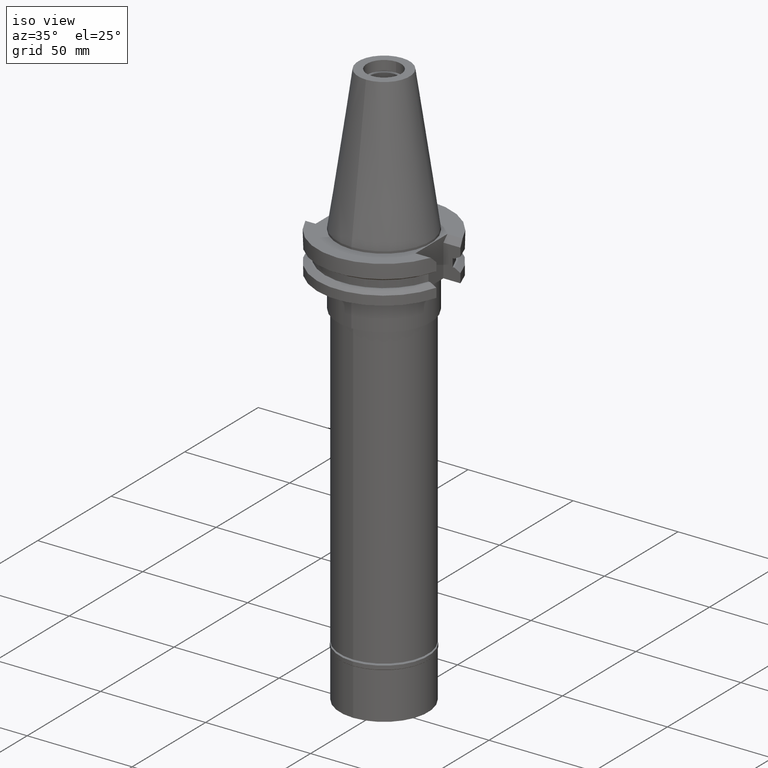
[diagram: clean part render]
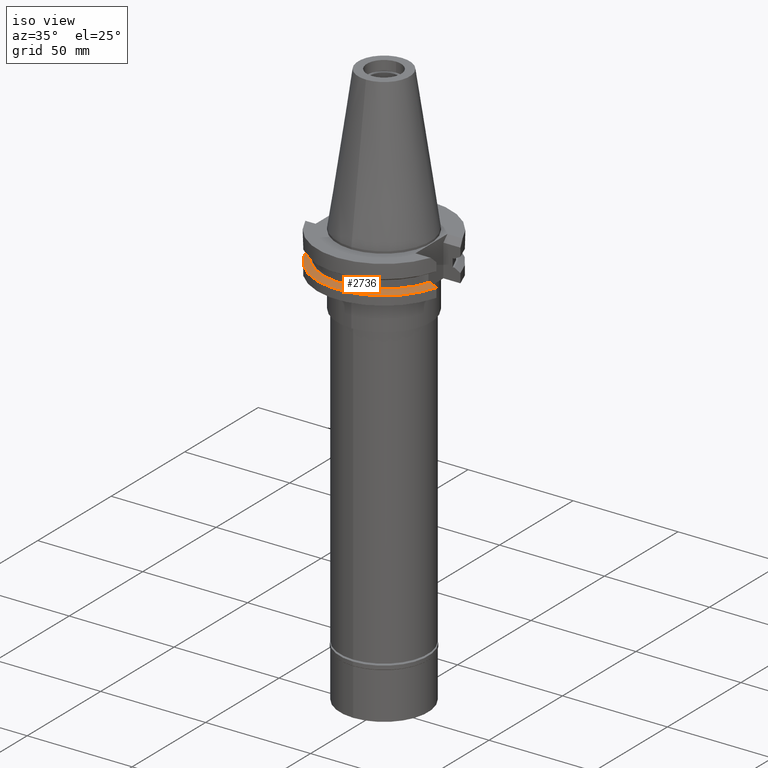
[diagram: same view with one face highlighted and labeled with its STEP entity id]
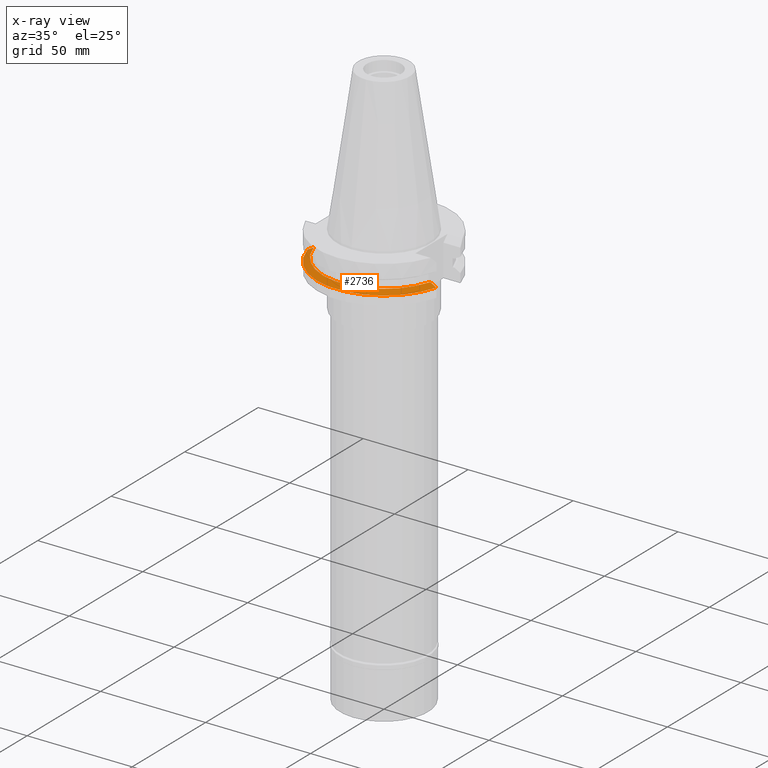
[diagram: x-ray of the same camera — body ghosted, the highlighted face saturated]
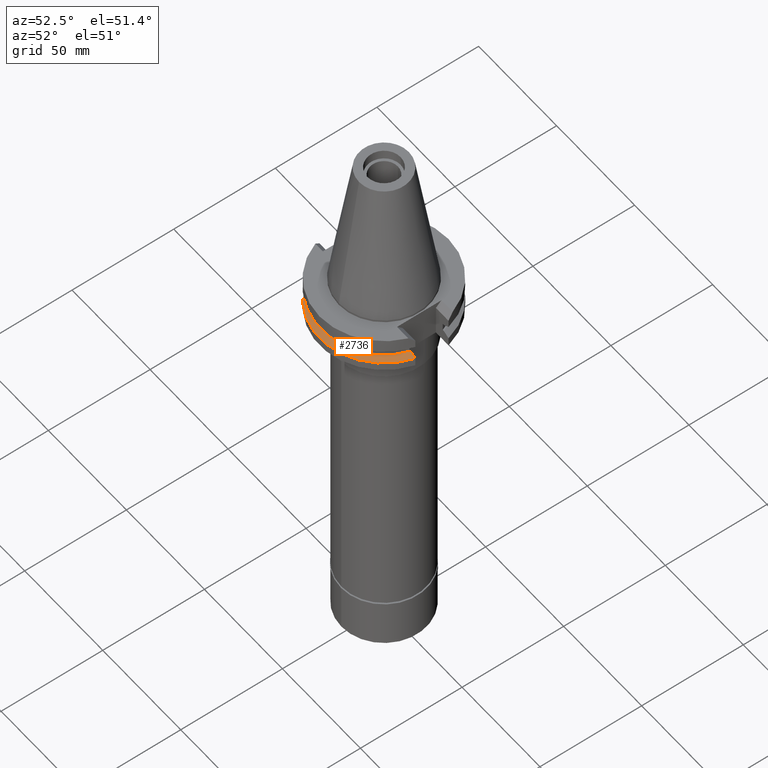
[diagram: same view with one face highlighted and labeled with its STEP entity id]
A machine part, iso view. The second image highlights one B-rep face of the part: STEP entity #2736.
The next image is the same camera in x-ray: the body ghosted, the highlighted face saturated — about 0% of this face is hidden behind the body in this view.
A second angle (auxiliary view) of the same face is appended — the face is thin or edge-on in the first view.
In plain terms, the highlighted conical surface has half-angle 60 deg.
Its self-contained STEP definition (entity closure, byte-faithful):
#20 = ORIENTED_EDGE ( 'NONE', *, *, #566, .T. ) ;
#41 = CARTESIAN_POINT ( 'NONE',  ( 30.34763340180000313, -8.190000606413001094, -14.47078367743999827 ) ) ;
#74 = CARTESIAN_POINT ( 'NONE',  ( 27.78616453828999866, -8.190000190935000646, -13.04749999999999943 ) ) ;
#147 = CONICAL_SURFACE ( 'NONE', #617, 30.35901877526999826, 1.047197551196400456 ) ;
#200 = DIRECTION ( 'NONE',  ( 0.0000000000000000000, 0.0000000000000000000, -1.000000000000000000 ) ) ;
#278 = AXIS2_PLACEMENT_3D ( 'NONE', #394, #200, #2220 ) ;
#305 = CARTESIAN_POINT ( 'NONE',  ( -29.69647123865000182, -8.189999973374000319, -14.10794229549000001 ) ) ;
#314 = DIRECTION ( 'NONE',  ( 0.9661575315241073270, -0.2579527559055020958, 0.0000000000000000000 ) ) ;
#394 = CARTESIAN_POINT ( 'NONE',  ( 0.0000000000000000000, 1.055026073064999954E-14, -13.04749999999999943 ) ) ;
#525 = VERTEX_POINT ( 'NONE', #1151 ) ;
#552 = CARTESIAN_POINT ( 'NONE',  ( -30.67550165945999652, -8.189999874273000913, -14.65366564556999940 ) ) ;
#566 = EDGE_CURVE ( 'NONE', #2999, #2998, #3151, .T. ) ;
#568 = CARTESIAN_POINT ( 'NONE',  ( -28.73337410535000203, -8.190000281779999725, -13.57253271351000024 ) ) ;
#617 = AXIS2_PLACEMENT_3D ( 'NONE', #700, #2209, #1992 ) ;
#700 = CARTESIAN_POINT ( 'NONE',  ( 0.0000000000000000000, 1.055026073064999954E-14, -13.85058338454000015 ) ) ;
#793 = EDGE_CURVE ( 'NONE', #1530, #2998, #1358, .T. ) ;
#1018 = CARTESIAN_POINT ( 'NONE',  ( -27.78617704655999887, -8.189999360264000217, -13.04749999999999943 ) ) ;
#1151 = CARTESIAN_POINT ( 'NONE',  ( 30.67550146398999900, -8.190000606413001094, -14.65367218811000072 ) ) ;
#1210 = AXIS2_PLACEMENT_3D ( 'NONE', #2570, #1324, #314 ) ;
#1263 = CIRCLE ( 'NONE', #1210, 31.74999999999998579 ) ;
#1316 = CARTESIAN_POINT ( 'NONE',  ( -28.10039086275999765, -8.189999360264000217, -13.22151001005000026 ) ) ;
#1324 = DIRECTION ( 'NONE',  ( 0.0000000000000000000, 0.0000000000000000000, -1.000000000000000000 ) ) ;
#1358 = B_SPLINE_CURVE_WITH_KNOTS ( 'NONE', 3,
 ( #552, #2858, #305, #568, #1316, #1018 ),
 .UNSPECIFIED., .F., .F.,
 ( 4, 1, 1, 4 ),
 ( 0.0000000000000000000, 0.3333333333333000081, 0.6666666666667000474, 1.000000000000000000 ),
 .UNSPECIFIED. ) ;
#1521 = ORIENTED_EDGE ( 'NONE', *, *, #793, .F. ) ;
#1530 = VERTEX_POINT ( 'NONE', #1734 ) ;
#1734 = CARTESIAN_POINT ( 'NONE',  ( -30.67550165945999652, -8.189999874273000913, -14.65366564556999940 ) ) ;
#1779 = CARTESIAN_POINT ( 'NONE',  ( 28.10039085313999863, -8.190000190935000646, -13.22151692714000148 ) ) ;
#1794 = CARTESIAN_POINT ( 'NONE',  ( 29.69646998833000140, -8.189999742464999954, -14.10793893844999936 ) ) ;
#1992 = DIRECTION ( 'NONE',  ( 0.0000000000000000000, -1.000000000000000000, 0.0000000000000000000 ) ) ;
#2061 = EDGE_LOOP ( 'NONE', ( #2584, #20, #1521, #2088 ) ) ;
#2070 = CARTESIAN_POINT ( 'NONE',  ( 30.67550146398999900, -8.190000606413001094, -14.65367218811000072 ) ) ;
#2088 = ORIENTED_EDGE ( 'NONE', *, *, #2170, .F. ) ;
#2170 = EDGE_CURVE ( 'NONE', #525, #1530, #1263, .T. ) ;
#2206 = EDGE_CURVE ( 'NONE', #2999, #525, #2660, .T. ) ;
#2209 = DIRECTION ( 'NONE',  ( 0.0000000000000000000, 0.0000000000000000000, -1.000000000000000000 ) ) ;
#2220 = DIRECTION ( 'NONE',  ( 0.0000000000000000000, -1.000000000000000000, 0.0000000000000000000 ) ) ;
#2567 = CARTESIAN_POINT ( 'NONE',  ( -27.78617704655999887, -8.189999360264000217, -13.04749999999999943 ) ) ;
#2570 = CARTESIAN_POINT ( 'NONE',  ( 0.0000000000000000000, 1.055026073064999954E-14, -14.65366676908000088 ) ) ;
#2584 = ORIENTED_EDGE ( 'NONE', *, *, #2206, .F. ) ;
#2660 = B_SPLINE_CURVE_WITH_KNOTS ( 'NONE', 3,
 ( #74, #1779, #2818, #1794, #41, #2070 ),
 .UNSPECIFIED., .F., .F.,
 ( 4, 1, 1, 4 ),
 ( 0.0000000000000000000, 0.3333333333333000081, 0.6666666666667000474, 1.000000000000000000 ),
 .UNSPECIFIED. ) ;
#2736 = ADVANCED_FACE ( 'NONE', ( #3039 ), #147, .T. ) ;
#2816 = CARTESIAN_POINT ( 'NONE',  ( 27.78616453828999866, -8.190000190935000646, -13.04749999999999943 ) ) ;
#2818 = CARTESIAN_POINT ( 'NONE',  ( 28.73336931253999893, -8.189999991751999886, -13.57252721327999900 ) ) ;
#2858 = CARTESIAN_POINT ( 'NONE',  ( -30.34763936108999971, -8.189999874273000913, -14.47078034651999978 ) ) ;
#2998 = VERTEX_POINT ( 'NONE', #2567 ) ;
#2999 = VERTEX_POINT ( 'NONE', #2816 ) ;
#3039 = FACE_OUTER_BOUND ( 'NONE', #2061, .T. ) ;
#3151 = CIRCLE ( 'NONE', #278, 28.96803755052999918 ) ;